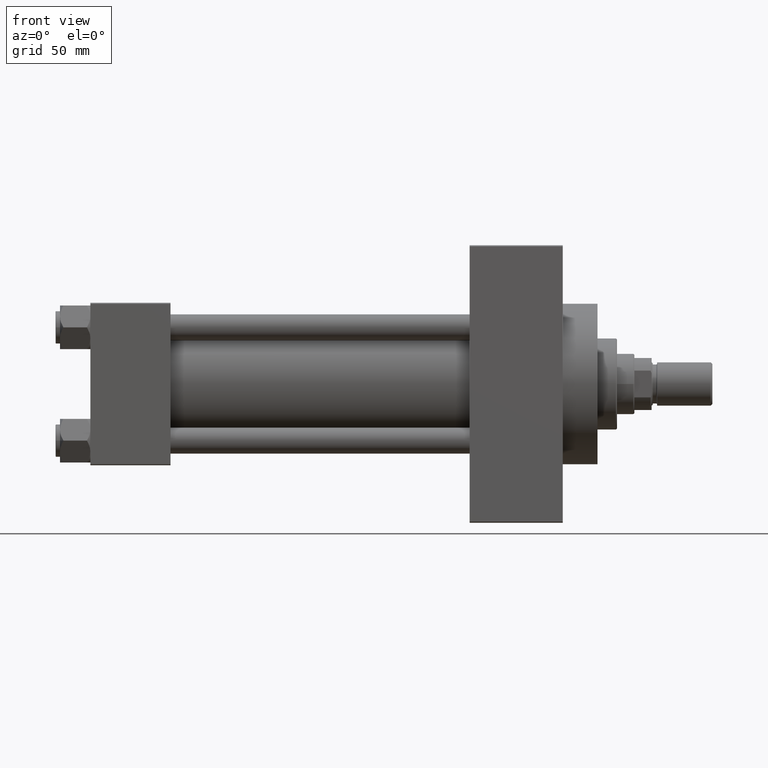
[diagram: clean part render]
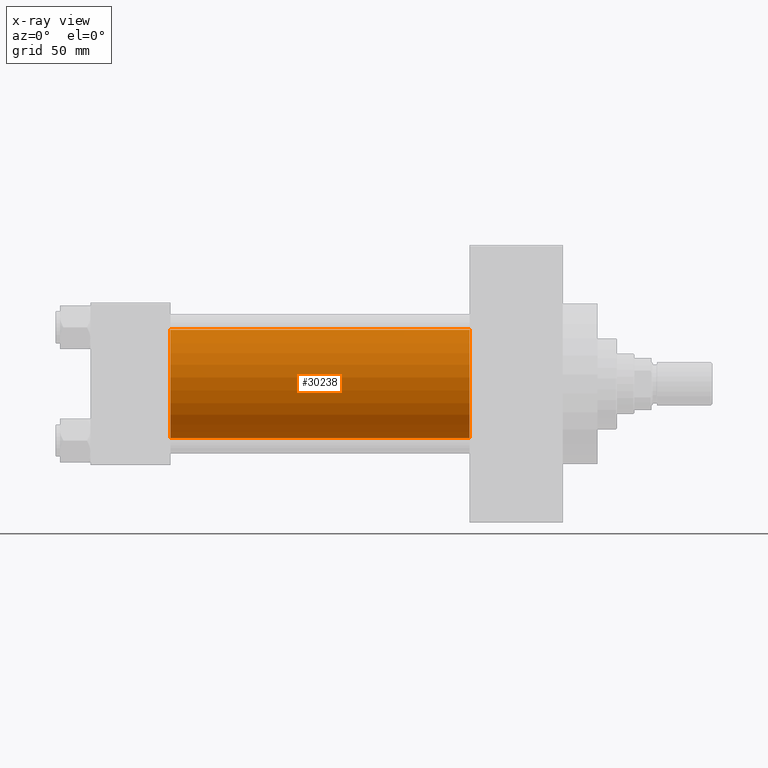
[diagram: x-ray — body ghosted, one internal face saturated and labeled with its STEP entity id]
A machine part, front view, then the same camera in x-ray: the body is ghosted and one INTERNAL B-rep face — a face not visible from any outside direction — is saturated and labeled: STEP entity #30238.
In plain terms, the highlighted cylindrical surface (partial cylindrical patch) has radius 25 mm, axis along (-1, -0, -0).
Its self-contained STEP definition (entity closure, byte-faithful):
#336 = DIRECTION ( 'NONE',  ( -1.000000000000000000, -0.000000000000000000, -0.000000000000000000 ) ) ;
#454 = AXIS2_PLACEMENT_3D ( 'NONE', #29355, #14660, #19700 ) ;
#1444 = DIRECTION ( 'NONE',  ( 0.000000000000000000, 0.000000000000000000, -1.000000000000000000 ) ) ;
#2146 = DIRECTION ( 'NONE',  ( 0.000000000000000000, 0.000000000000000000, 1.000000000000000000 ) ) ;
#2857 = DIRECTION ( 'NONE',  ( -1.000000000000000000, -0.000000000000000000, -0.000000000000000000 ) ) ;
#3083 = EDGE_CURVE ( 'NONE', #19721, #39165, #3803, .T. ) ;
#3803 = LINE ( 'NONE', #18518, #34078 ) ;
#7329 = CARTESIAN_POINT ( 'NONE',  ( 175.0000000000000284, 4.595317839031724996E-16, -25.00000000000000000 ) ) ;
#7429 = CARTESIAN_POINT ( 'NONE',  ( 175.0000000000000284, 4.595317839031724996E-16, -25.00000000000000000 ) ) ;
#10123 = EDGE_CURVE ( 'NONE', #18831, #36230, #36984, .T. ) ;
#13256 = CARTESIAN_POINT ( 'NONE',  ( 175.0000000000000284, -2.602085213965210642E-15, 0.000000000000000000 ) ) ;
#14660 = DIRECTION ( 'NONE',  ( 1.000000000000000000, 0.000000000000000000, 0.000000000000000000 ) ) ;
#15676 = ORIENTED_EDGE ( 'NONE', *, *, #18625, .F. ) ;
#18518 = CARTESIAN_POINT ( 'NONE',  ( 175.0000000000000284, -2.602085213965210642E-15, 25.00000000000000000 ) ) ;
#18625 = EDGE_CURVE ( 'NONE', #39165, #36230, #27400, .T. ) ;
#18831 = VERTEX_POINT ( 'NONE', #7429 ) ;
#18892 = ORIENTED_EDGE ( 'NONE', *, *, #10123, .T. ) ;
#19700 = DIRECTION ( 'NONE',  ( 0.000000000000000000, 0.000000000000000000, -1.000000000000000000 ) ) ;
#19711 = AXIS2_PLACEMENT_3D ( 'NONE', #27467, #41718, #1444 ) ;
#19721 = VERTEX_POINT ( 'NONE', #21910 ) ;
#21910 = CARTESIAN_POINT ( 'NONE',  ( 175.0000000000000284, -2.602085213965210642E-15, 25.00000000000000000 ) ) ;
#22207 = EDGE_CURVE ( 'NONE', #19721, #18831, #25093, .T. ) ;
#24843 = ORIENTED_EDGE ( 'NONE', *, *, #22207, .T. ) ;
#25093 = CIRCLE ( 'NONE', #19711, 25.00000000000000000 ) ;
#26490 = VECTOR ( 'NONE', #336, 1000.000000000000000 ) ;
#27400 = CIRCLE ( 'NONE', #454, 25.00000000000000000 ) ;
#27467 = CARTESIAN_POINT ( 'NONE',  ( 175.0000000000000284, -2.602085213965210642E-15, 0.000000000000000000 ) ) ;
#27802 = CARTESIAN_POINT ( 'NONE',  ( 37.00000000000000000, 4.595317839031724996E-16, -25.00000000000000000 ) ) ;
#29355 = CARTESIAN_POINT ( 'NONE',  ( 37.00000000000000000, -2.602085213965210642E-15, 0.000000000000000000 ) ) ;
#30238 = ADVANCED_FACE ( 'NONE', ( #46740 ), #35185, .F. ) ;
#33038 = AXIS2_PLACEMENT_3D ( 'NONE', #13256, #2857, #2146 ) ;
#33213 = DIRECTION ( 'NONE',  ( -1.000000000000000000, -0.000000000000000000, -0.000000000000000000 ) ) ;
#34078 = VECTOR ( 'NONE', #33213, 1000.000000000000000 ) ;
#35185 = CYLINDRICAL_SURFACE ( 'NONE', #33038, 25.00000000000000000 ) ;
#36230 = VERTEX_POINT ( 'NONE', #27802 ) ;
#36422 = EDGE_LOOP ( 'NONE', ( #24843, #18892, #15676, #45869 ) ) ;
#36984 = LINE ( 'NONE', #7329, #26490 ) ;
#39165 = VERTEX_POINT ( 'NONE', #43748 ) ;
#41718 = DIRECTION ( 'NONE',  ( 1.000000000000000000, 0.000000000000000000, 0.000000000000000000 ) ) ;
#43748 = CARTESIAN_POINT ( 'NONE',  ( 37.00000000000000000, -2.602085213965210642E-15, 25.00000000000000000 ) ) ;
#45869 = ORIENTED_EDGE ( 'NONE', *, *, #3083, .F. ) ;
#46740 = FACE_OUTER_BOUND ( 'NONE', #36422, .T. ) ;